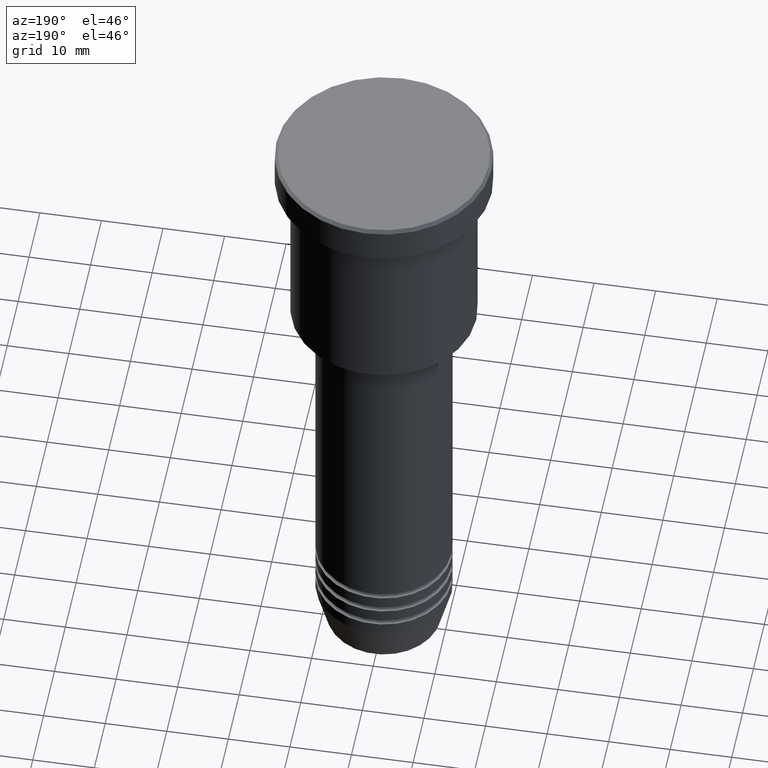
[diagram: clean part render]
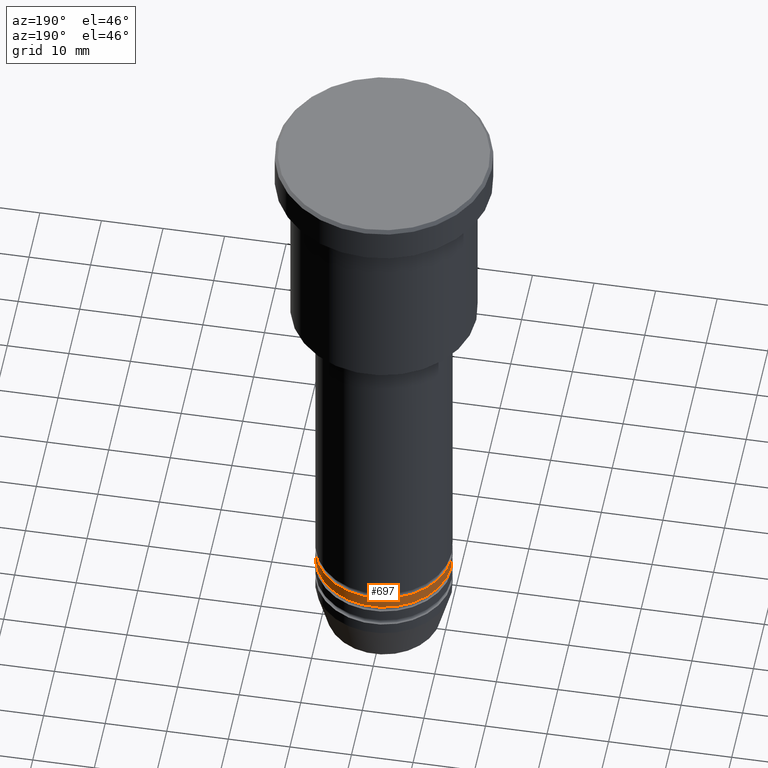
[diagram: same view with one face highlighted and labeled with its STEP entity id]
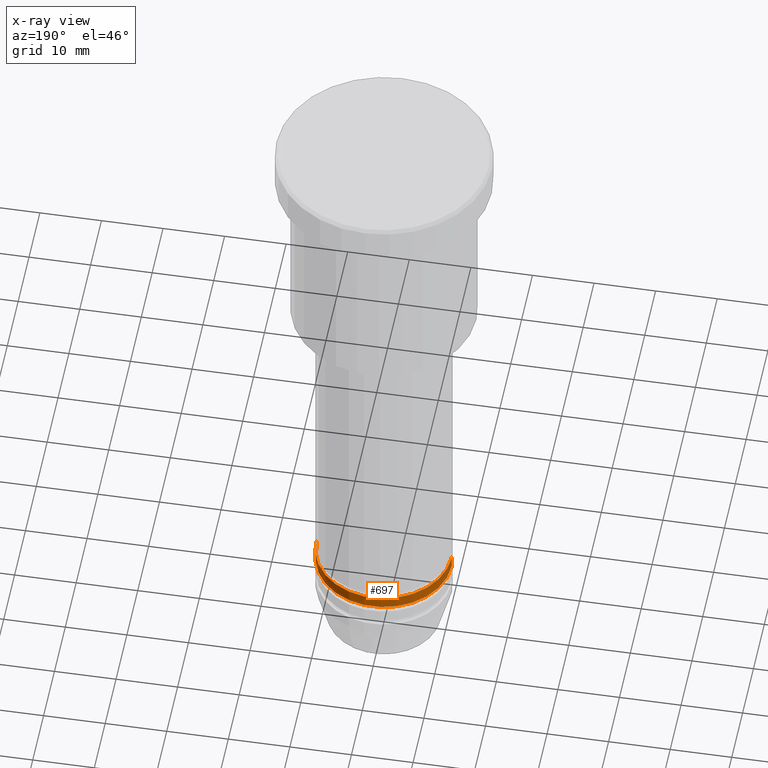
[diagram: x-ray of the same camera — body ghosted, the highlighted face saturated]
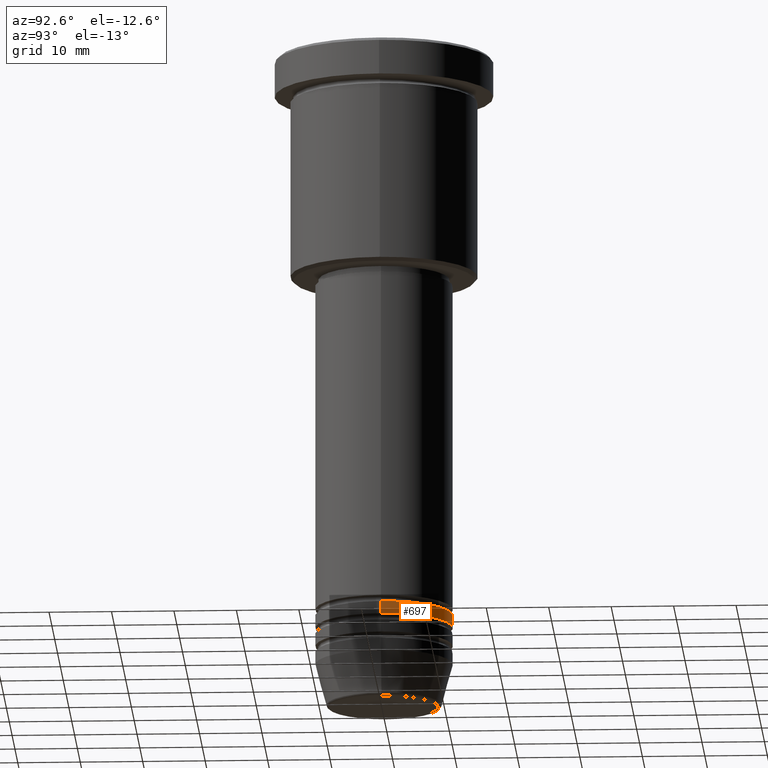
[diagram: same view with one face highlighted and labeled with its STEP entity id]
A machine part, auxiliary view. The second image highlights one B-rep face of the part: STEP entity #697.
The next image is the same camera in x-ray: the body ghosted, the highlighted face saturated — about 0% of this face is hidden behind the body in this view.
A second angle (auxiliary view) of the same face is appended — the face is thin or edge-on in the first view.
In plain terms, the highlighted cylindrical surface (partial cylindrical patch) has radius 11 mm, axis along (-0, -0, 1).
Its self-contained STEP definition (entity closure, byte-faithful):
#21 = ORIENTED_EDGE ( 'NONE', *, *, #1038, .T. ) ;
#23 = CARTESIAN_POINT ( 'NONE',  ( -11.00000000000000000, 1.347111479062088405E-15, 0.000000000000000000 ) ) ;
#84 = CARTESIAN_POINT ( 'NONE',  ( 11.00000000000000000, 0.000000000000000000, -92.99999999999997158 ) ) ;
#87 = VERTEX_POINT ( 'NONE', #84 ) ;
#90 = EDGE_CURVE ( 'NONE', #87, #827, #509, .T. ) ;
#97 = LINE ( 'NONE', #23, #472 ) ;
#120 = EDGE_CURVE ( 'NONE', #612, #780, #471, .T. ) ;
#140 = CARTESIAN_POINT ( 'NONE',  ( 0.000000000000000000, 0.000000000000000000, 0.000000000000000000 ) ) ;
#149 = CYLINDRICAL_SURFACE ( 'NONE', #1163, 11.00000000000000000 ) ;
#220 = DIRECTION ( 'NONE',  ( 1.000000000000000000, 0.000000000000000000, 0.000000000000000000 ) ) ;
#225 = AXIS2_PLACEMENT_3D ( 'NONE', #1174, #919, #404 ) ;
#239 = DIRECTION ( 'NONE',  ( 1.000000000000000000, 0.000000000000000000, 0.000000000000000000 ) ) ;
#318 = CARTESIAN_POINT ( 'NONE',  ( -11.00000000000000000, 1.347111479062088405E-15, -92.99999999999997158 ) ) ;
#345 = LINE ( 'NONE', #1069, #501 ) ;
#404 = DIRECTION ( 'NONE',  ( 1.000000000000000000, 0.000000000000000000, 0.000000000000000000 ) ) ;
#410 = EDGE_LOOP ( 'NONE', ( #636, #21, #1134, #672 ) ) ;
#471 = CIRCLE ( 'NONE', #853, 11.00000000000000000 ) ;
#472 = VECTOR ( 'NONE', #742, 1000.000000000000000 ) ;
#488 = CARTESIAN_POINT ( 'NONE',  ( 11.00000000000000000, 0.000000000000000000, -90.99999999999998579 ) ) ;
#501 = VECTOR ( 'NONE', #638, 1000.000000000000000 ) ;
#509 = CIRCLE ( 'NONE', #225, 11.00000000000000000 ) ;
#579 = FACE_OUTER_BOUND ( 'NONE', #410, .T. ) ;
#612 = VERTEX_POINT ( 'NONE', #488 ) ;
#636 = ORIENTED_EDGE ( 'NONE', *, *, #90, .T. ) ;
#638 = DIRECTION ( 'NONE',  ( -0.000000000000000000, -0.000000000000000000, 1.000000000000000000 ) ) ;
#672 = ORIENTED_EDGE ( 'NONE', *, *, #945, .F. ) ;
#697 = ADVANCED_FACE ( 'NONE', ( #579 ), #149, .T. ) ;
#742 = DIRECTION ( 'NONE',  ( -0.000000000000000000, -0.000000000000000000, 1.000000000000000000 ) ) ;
#780 = VERTEX_POINT ( 'NONE', #782 ) ;
#782 = CARTESIAN_POINT ( 'NONE',  ( -11.00000000000000000, 1.347111479062088405E-15, -90.99999999999998579 ) ) ;
#827 = VERTEX_POINT ( 'NONE', #318 ) ;
#853 = AXIS2_PLACEMENT_3D ( 'NONE', #1119, #860, #220 ) ;
#860 = DIRECTION ( 'NONE',  ( -0.000000000000000000, -0.000000000000000000, 1.000000000000000000 ) ) ;
#877 = DIRECTION ( 'NONE',  ( -0.000000000000000000, -0.000000000000000000, 1.000000000000000000 ) ) ;
#919 = DIRECTION ( 'NONE',  ( -0.000000000000000000, -0.000000000000000000, 1.000000000000000000 ) ) ;
#945 = EDGE_CURVE ( 'NONE', #87, #612, #345, .T. ) ;
#1038 = EDGE_CURVE ( 'NONE', #827, #780, #97, .T. ) ;
#1069 = CARTESIAN_POINT ( 'NONE',  ( 11.00000000000000000, 0.000000000000000000, 0.000000000000000000 ) ) ;
#1119 = CARTESIAN_POINT ( 'NONE',  ( 0.000000000000000000, 0.000000000000000000, -90.99999999999998579 ) ) ;
#1134 = ORIENTED_EDGE ( 'NONE', *, *, #120, .F. ) ;
#1163 = AXIS2_PLACEMENT_3D ( 'NONE', #140, #877, #239 ) ;
#1174 = CARTESIAN_POINT ( 'NONE',  ( 0.000000000000000000, 0.000000000000000000, -92.99999999999997158 ) ) ;